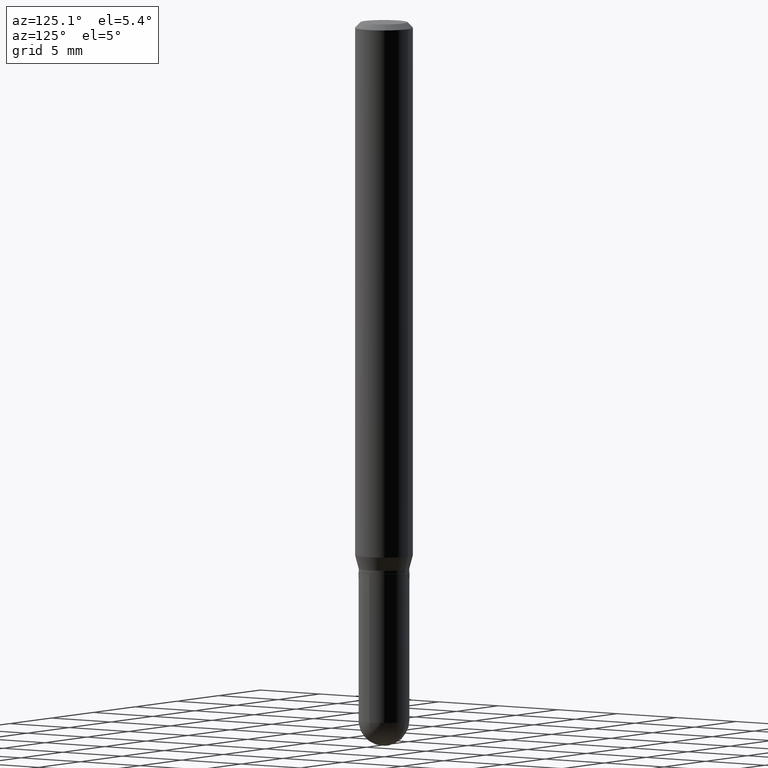
[diagram: clean part render]
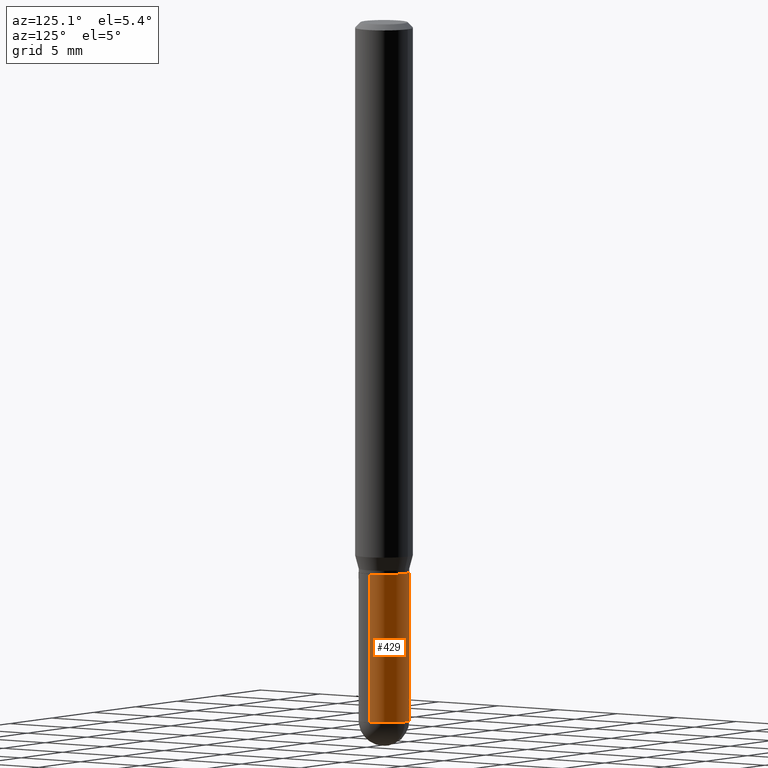
[diagram: same view with one face highlighted and labeled with its STEP entity id]
A machine part, auxiliary view. The second image highlights one B-rep face of the part: STEP entity #429.
In plain terms, the highlighted cylindrical surface (edge-blend (fillet) strip) has radius 1.7501 mm, axis along (-0, 0, 1).
Its self-contained STEP definition (entity closure, byte-faithful):
#3 = VERTEX_POINT ( 'NONE', #241 ) ;
#10 = VERTEX_POINT ( 'NONE', #360 ) ;
#17 = EDGE_CURVE ( 'NONE', #90, #414, #444, .T. ) ;
#18 = ORIENTED_EDGE ( 'NONE', *, *, #328, .T. ) ;
#19 = AXIS2_PLACEMENT_3D ( 'NONE', #124, #484, #404 ) ;
#41 = CARTESIAN_POINT ( 'NONE',  ( -0.06890000000000008618, -5.438447646216124813E-15, -1.899600000000000177 ) ) ;
#43 = CIRCLE ( 'NONE', #19, 0.06890000000000007230 ) ;
#57 = LINE ( 'NONE', #62, #459 ) ;
#62 = CARTESIAN_POINT ( 'NONE',  ( -0.06890000000000007230, 4.895639449387095418E-16, -3.389146277185633520E-30 ) ) ;
#84 = DIRECTION ( 'NONE',  ( -2.445468806185136597E-29, 3.491481338843145583E-15, 1.000000000000000000 ) ) ;
#90 = VERTEX_POINT ( 'NONE', #295 ) ;
#123 = CYLINDRICAL_SURFACE ( 'NONE', #182, 0.06890000000000007230 ) ;
#124 = CARTESIAN_POINT ( 'NONE',  ( 4.645412544229285965E-29, -6.632417951266439838E-15, -1.899600000000000177 ) ) ;
#132 = DIRECTION ( 'NONE',  ( 1.000000000000000000, -6.982962677686273021E-15, 0.000000000000000000 ) ) ;
#153 = DIRECTION ( 'NONE',  ( -2.445468806185136597E-29, 3.491481338843145583E-15, 1.000000000000000000 ) ) ;
#161 = CARTESIAN_POINT ( 'NONE',  ( 3.658665880933582389E-29, -5.223605231043229660E-15, -1.496099999999999985 ) ) ;
#166 = VECTOR ( 'NONE', #504, 39.37007874015748143 ) ;
#182 = AXIS2_PLACEMENT_3D ( 'NONE', #319, #84, #232 ) ;
#186 = EDGE_CURVE ( 'NONE', #3, #10, #417, .T. ) ;
#232 = DIRECTION ( 'NONE',  ( 1.000000000000000000, -6.982962677686265922E-15, 4.876176775795935232E-29 ) ) ;
#237 = AXIS2_PLACEMENT_3D ( 'NONE', #161, #153, #395 ) ;
#238 = EDGE_LOOP ( 'NONE', ( #357, #18, #471, #283, #405 ) ) ;
#239 = EDGE_CURVE ( 'NONE', #502, #90, #43, .T. ) ;
#241 = CARTESIAN_POINT ( 'NONE',  ( 0.06890000000000007230, -5.704731359535814187E-15, -1.496099999999999985 ) ) ;
#263 = AXIS2_PLACEMENT_3D ( 'NONE', #495, #365, #132 ) ;
#271 = FACE_OUTER_BOUND ( 'NONE', #238, .T. ) ;
#283 = ORIENTED_EDGE ( 'NONE', *, *, #317, .F. ) ;
#295 = CARTESIAN_POINT ( 'NONE',  ( 4.811261284926304785E-16, 0.06889999999999341096, -1.899600000000000399 ) ) ;
#301 = DIRECTION ( 'NONE',  ( -2.445468806185136877E-29, 3.491481338843145188E-15, 1.000000000000000000 ) ) ;
#317 = EDGE_CURVE ( 'NONE', #502, #3, #512, .T. ) ;
#319 = CARTESIAN_POINT ( 'NONE',  ( 0.000000000000000000, 0.000000000000000000, 0.000000000000000000 ) ) ;
#328 = EDGE_CURVE ( 'NONE', #414, #10, #57, .T. ) ;
#333 = CARTESIAN_POINT ( 'NONE',  ( 0.06890000000000007230, -4.811261284925842315E-16, 3.359685798523402771E-30 ) ) ;
#357 = ORIENTED_EDGE ( 'NONE', *, *, #17, .T. ) ;
#360 = CARTESIAN_POINT ( 'NONE',  ( -0.06890000000000007230, -5.438447646216124813E-15, -1.496099999999999985 ) ) ;
#365 = DIRECTION ( 'NONE',  ( -2.445468806185136597E-29, 3.491481338843145583E-15, 1.000000000000000000 ) ) ;
#395 = DIRECTION ( 'NONE',  ( 1.000000000000000000, -6.982962677686273021E-15, 0.000000000000000000 ) ) ;
#404 = DIRECTION ( 'NONE',  ( 1.000000000000000000, -6.982962677686273021E-15, 0.000000000000000000 ) ) ;
#405 = ORIENTED_EDGE ( 'NONE', *, *, #239, .T. ) ;
#414 = VERTEX_POINT ( 'NONE', #41 ) ;
#417 = CIRCLE ( 'NONE', #237, 0.06890000000000007230 ) ;
#429 = ADVANCED_FACE ( 'NONE', ( #271 ), #123, .T. ) ;
#431 = CARTESIAN_POINT ( 'NONE',  ( 0.06890000000000008618, -6.409137719647418882E-15, -1.899600000000000177 ) ) ;
#444 = CIRCLE ( 'NONE', #263, 0.06890000000000007230 ) ;
#459 = VECTOR ( 'NONE', #301, 39.37007874015748143 ) ;
#471 = ORIENTED_EDGE ( 'NONE', *, *, #186, .F. ) ;
#484 = DIRECTION ( 'NONE',  ( -2.445468806185136597E-29, 3.491481338843145583E-15, 1.000000000000000000 ) ) ;
#495 = CARTESIAN_POINT ( 'NONE',  ( 4.645412544229285965E-29, -6.632417951266439838E-15, -1.899600000000000177 ) ) ;
#502 = VERTEX_POINT ( 'NONE', #431 ) ;
#504 = DIRECTION ( 'NONE',  ( -2.445468806185136877E-29, 3.491481338843145188E-15, 1.000000000000000000 ) ) ;
#512 = LINE ( 'NONE', #333, #166 ) ;